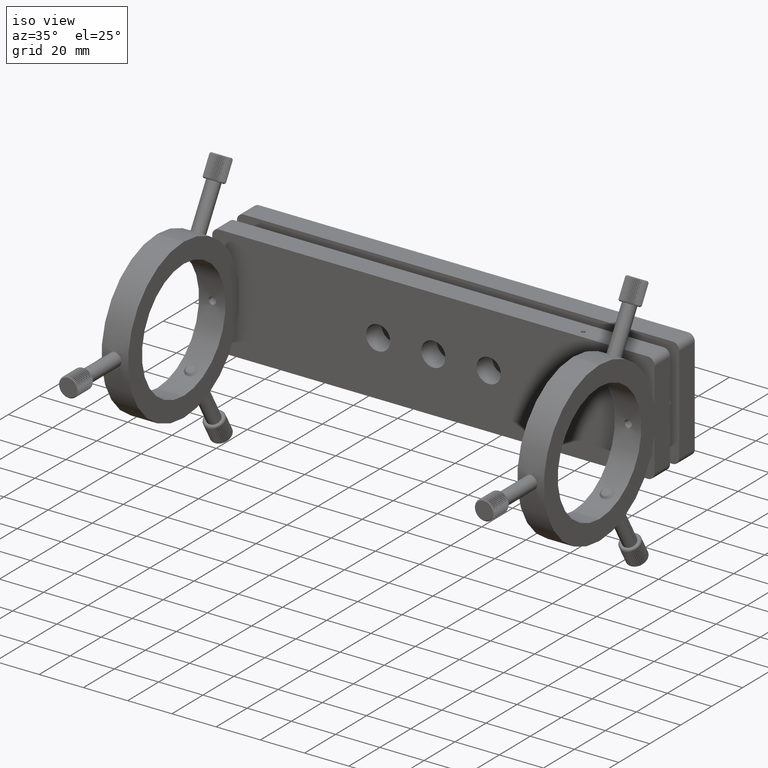
[diagram: clean part render]
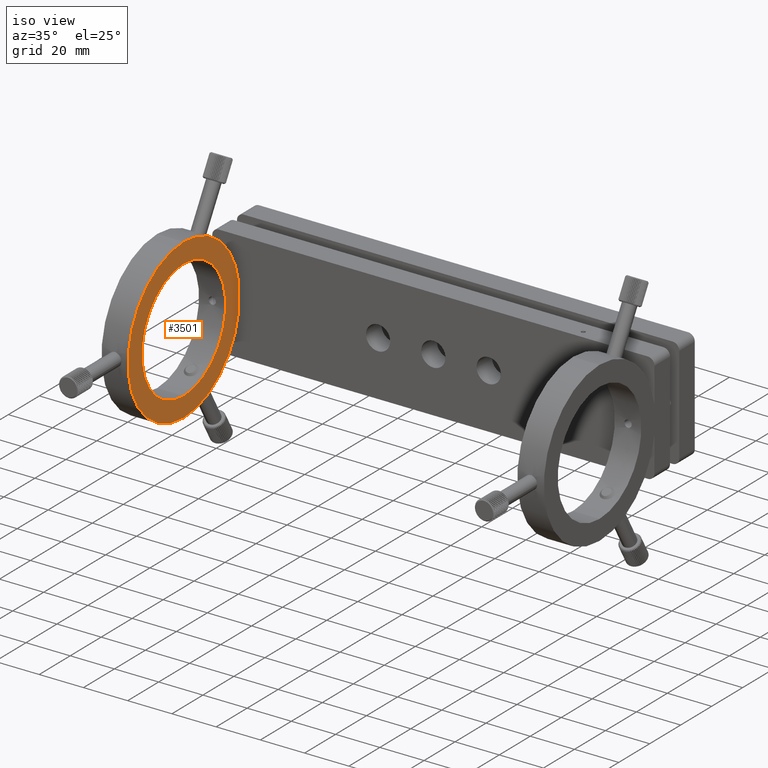
[diagram: same view with one face highlighted and labeled with its STEP entity id]
A machine part, iso view. The second image highlights one B-rep face of the part: STEP entity #3501.
In plain terms, the highlighted planar face has unit normal (-1, -0, -0).
Its self-contained STEP definition (entity closure, byte-faithful):
#27 = VERTEX_POINT ( 'NONE', #30805 ) ;
#314 = PLANE ( 'NONE',  #46804 ) ;
#444 = DIRECTION ( 'NONE',  ( -1.000000000000000000, -3.427476219765679400E-016, -1.054711873393897900E-015 ) ) ;
#851 = CIRCLE ( 'NONE', #41567, 27.00000000000002500 ) ;
#1476 = ORIENTED_EDGE ( 'NONE', *, *, #9007, .T. ) ;
#1501 = DIRECTION ( 'NONE',  ( 1.156482317317870500E-015, -5.782411586589352700E-016, -1.000000000000000000 ) ) ;
#2003 = CARTESIAN_POINT ( 'NONE',  ( -91.63306085376920900, -52.91295791704509800, 3.408384685599232500E-014 ) ) ;
#2324 = FACE_OUTER_BOUND ( 'NONE', #28227, .T. ) ;
#3501 = ADVANCED_FACE ( 'NONE', ( #2324, #40577 ), #314, .F. ) ;
#5229 = CARTESIAN_POINT ( 'NONE',  ( -91.63306085376920900, -52.91295791704509800, 3.408384685599232500E-014 ) ) ;
#5461 = CIRCLE ( 'NONE', #23586, 36.00000000000002800 ) ;
#5703 = ORIENTED_EDGE ( 'NONE', *, *, #25269, .F. ) ;
#9007 = EDGE_CURVE ( 'NONE', #13361, #35200, #34462, .T. ) ;
#11697 = CARTESIAN_POINT ( 'NONE',  ( -91.63306085376925100, -52.91295791704507700, 36.00000000000002800 ) ) ;
#11975 = DIRECTION ( 'NONE',  ( -1.000000000000000000, -3.427476219765679400E-016, -1.054711873393897900E-015 ) ) ;
#12340 = CARTESIAN_POINT ( 'NONE',  ( -91.63306085376920900, -52.91295791704509800, 3.408384685599232500E-014 ) ) ;
#12372 = ORIENTED_EDGE ( 'NONE', *, *, #45084, .T. ) ;
#13361 = VERTEX_POINT ( 'NONE', #35450 ) ;
#13430 = VERTEX_POINT ( 'NONE', #47779 ) ;
#14740 = CARTESIAN_POINT ( 'NONE',  ( -91.63306085376918000, -52.91295791704511900, -26.99999999999996400 ) ) ;
#15413 = DIRECTION ( 'NONE',  ( -1.000000000000000000, -3.427476219765678900E-016, -1.054711873393897900E-015 ) ) ;
#16195 = DIRECTION ( 'NONE',  ( 1.156482317317870500E-015, -5.782411586589352700E-016, -1.000000000000000000 ) ) ;
#19373 = DIRECTION ( 'NONE',  ( 1.027984282060329200E-015, -5.139921410301645900E-016, -1.000000000000000000 ) ) ;
#20276 = DIRECTION ( 'NONE',  ( -1.000000000000000000, -3.427476219765679400E-016, -1.054711873393897900E-015 ) ) ;
#21031 = EDGE_CURVE ( 'NONE', #27, #31959, #26170, .T. ) ;
#21032 = AXIS2_PLACEMENT_3D ( 'NONE', #45516, #444, #26768 ) ;
#22782 = EDGE_LOOP ( 'NONE', ( #1476, #12372 ) ) ;
#23586 = AXIS2_PLACEMENT_3D ( 'NONE', #5229, #20276, #16195 ) ;
#25250 = EDGE_CURVE ( 'NONE', #31959, #25457, #26628, .T. ) ;
#25269 = EDGE_CURVE ( 'NONE', #13430, #27, #5461, .T. ) ;
#25457 = VERTEX_POINT ( 'NONE', #35479 ) ;
#26170 = CIRCLE ( 'NONE', #48742, 36.00000000000002800 ) ;
#26628 = CIRCLE ( 'NONE', #21032, 36.00000000000002800 ) ;
#26768 = DIRECTION ( 'NONE',  ( 1.156482317317870500E-015, -5.782411586589352700E-016, -1.000000000000000000 ) ) ;
#28227 = EDGE_LOOP ( 'NONE', ( #5703, #40661, #30229, #46329 ) ) ;
#30229 = ORIENTED_EDGE ( 'NONE', *, *, #25250, .F. ) ;
#30805 = CARTESIAN_POINT ( 'NONE',  ( -91.63306085376916600, -52.91295791704511900, -35.99999999999996400 ) ) ;
#31029 = AXIS2_PLACEMENT_3D ( 'NONE', #45689, #11975, #37947 ) ;
#31959 = VERTEX_POINT ( 'NONE', #11697 ) ;
#32889 = VECTOR ( 'NONE', #45068, 1000.000000000000000 ) ;
#34059 = LINE ( 'NONE', #41312, #32889 ) ;
#34462 = CIRCLE ( 'NONE', #31029, 27.00000000000002500 ) ;
#34513 = CARTESIAN_POINT ( 'NONE',  ( -91.63306085376920900, -52.91295791704509800, 3.408384685599232500E-014 ) ) ;
#35200 = VERTEX_POINT ( 'NONE', #14740 ) ;
#35450 = CARTESIAN_POINT ( 'NONE',  ( -91.63306085376923700, -52.91295791704507700, 27.00000000000003600 ) ) ;
#35479 = CARTESIAN_POINT ( 'NONE',  ( -91.63306085376923700, -17.41295791704510500, 5.979130371550717800 ) ) ;
#37947 = DIRECTION ( 'NONE',  ( 1.027984282060329200E-015, -5.139921410301645900E-016, -1.000000000000000000 ) ) ;
#38311 = DIRECTION ( 'NONE',  ( -1.000000000000000000, -3.427476219765679400E-016, -1.054711873393897900E-015 ) ) ;
#39123 = DIRECTION ( 'NONE',  ( -1.000000000000000000, -3.427476219765679400E-016, -1.054711873393897900E-015 ) ) ;
#40577 = FACE_BOUND ( 'NONE', #22782, .T. ) ;
#40661 = ORIENTED_EDGE ( 'NONE', *, *, #47614, .F. ) ;
#41312 = CARTESIAN_POINT ( 'NONE',  ( -91.63306085376923700, -17.41295791704510500, 5.979130371550717800 ) ) ;
#41567 = AXIS2_PLACEMENT_3D ( 'NONE', #12340, #38311, #19373 ) ;
#41757 = DIRECTION ( 'NONE',  ( 1.054711873393898100E-015, -5.334124226075692500E-016, -1.000000000000000000 ) ) ;
#45068 = DIRECTION ( 'NONE',  ( 1.054711873393898300E-015, -5.334124226075692500E-016, -1.000000000000000000 ) ) ;
#45084 = EDGE_CURVE ( 'NONE', #35200, #13361, #851, .T. ) ;
#45516 = CARTESIAN_POINT ( 'NONE',  ( -91.63306085376920900, -52.91295791704509800, 3.408384685599232500E-014 ) ) ;
#45689 = CARTESIAN_POINT ( 'NONE',  ( -91.63306085376920900, -52.91295791704509800, 3.408384685599232500E-014 ) ) ;
#46329 = ORIENTED_EDGE ( 'NONE', *, *, #21031, .F. ) ;
#46804 = AXIS2_PLACEMENT_3D ( 'NONE', #34513, #15413, #41757 ) ;
#47614 = EDGE_CURVE ( 'NONE', #25457, #13430, #34059, .T. ) ;
#47779 = CARTESIAN_POINT ( 'NONE',  ( -91.63306085376918000, -17.41295791704509800, -5.979130371550688500 ) ) ;
#48742 = AXIS2_PLACEMENT_3D ( 'NONE', #2003, #39123, #1501 ) ;